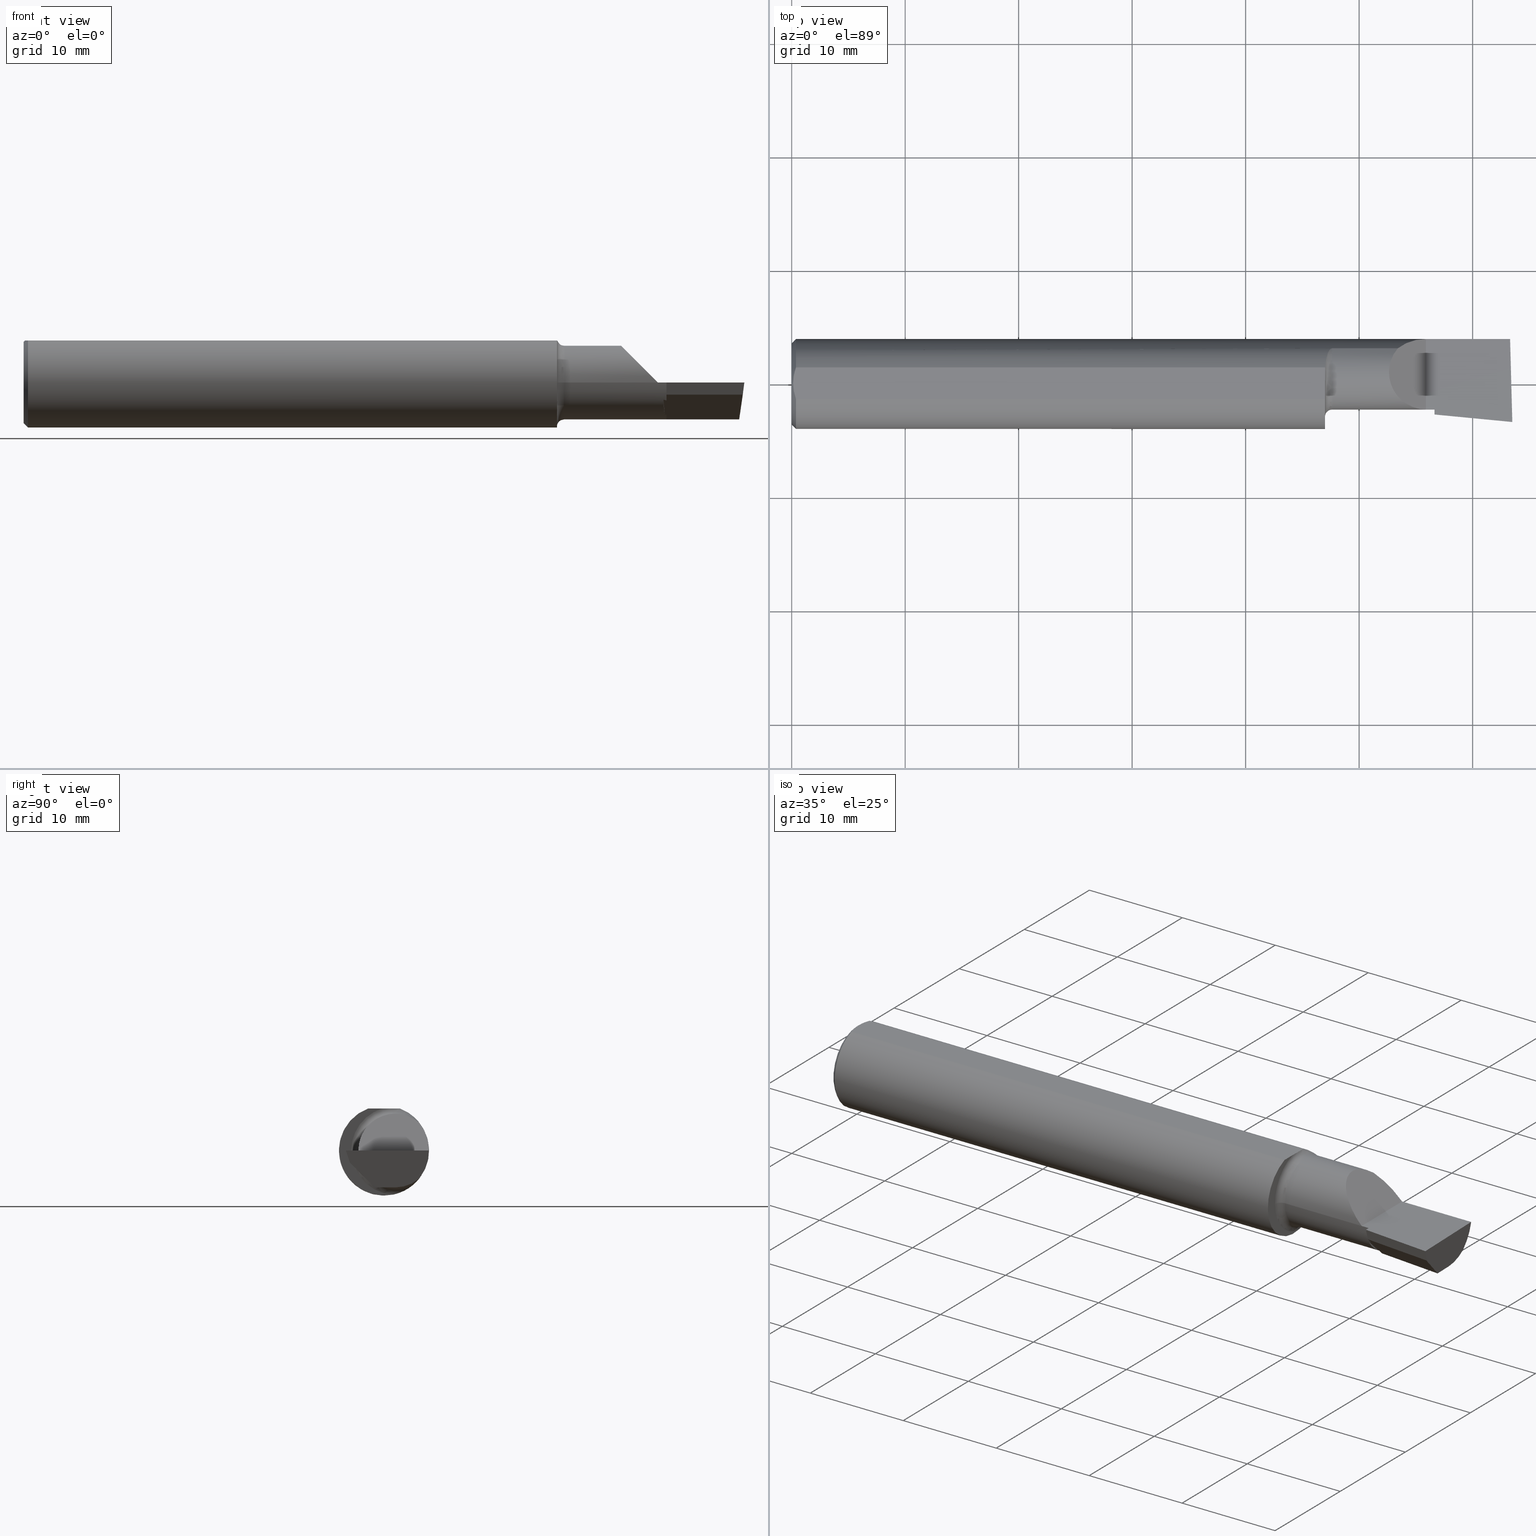
[diagram: canonical four-view strip — front | top / right | iso, engineering-drawing reading convention]
A machine part, canonical four-view strip (front | top / right | iso — engineering-drawing reading convention). The complete STEP part file that produces these views, byte-faithful:
ISO-10303-21;
HEADER;
FILE_DESCRIPTION (( 'STEP AP203' ),
    '1' );
FILE_NAME ('212055-LHB290600.STEP',
    '2024-08-27T17:00:04',
    ( '' ),
    ( '' ),
    'SwSTEP 2.0',
    'SolidWorks 2024',
    '' );
FILE_SCHEMA (( 'CONFIG_CONTROL_DESIGN' ));
ENDSEC;

DATA;
#1 = FACE_OUTER_BOUND ( 'NONE', #699, .T. ) ;
#2 = ORIENTED_EDGE ( 'NONE', *, *, #57, .F. ) ;
#3 =( BOUNDED_CURVE ( )  B_SPLINE_CURVE ( 3, ( #381, #215, #436, #553 ),
 .UNSPECIFIED., .F., .F. ) 
 B_SPLINE_CURVE_WITH_KNOTS ( ( 4, 4 ),
 ( 4.934903206476692006, 5.606733633295030828 ),
 .UNSPECIFIED. ) 
 CURVE ( )  GEOMETRIC_REPRESENTATION_ITEM ( )  RATIONAL_B_SPLINE_CURVE ( ( 1.000000000000000000, 0.9627393467969929119, 0.9627393467969929119, 1.000000000000000000 ) ) 
 REPRESENTATION_ITEM ( '' )  );
#4 = ORIENTED_EDGE ( 'NONE', *, *, #456, .T. ) ;
#5 = AXIS2_PLACEMENT_3D ( 'NONE', #282, #386, #232 ) ;
#6 = DIRECTION ( 'NONE',  ( 0.9953961983671787417, -0.09584575252022418945, -9.831095531899266013E-17 ) ) ;
#7 = CARTESIAN_POINT ( 'NONE',  ( 0.005000000000000177913, 2.057148876208899831E-17, 0.1460999999999999799 ) ) ;
#8 = ADVANCED_FACE ( 'NONE', ( #389 ), #663, .T. ) ;
#9 = ORIENTED_EDGE ( 'NONE', *, *, #161, .F. ) ;
#10 = LINE ( 'NONE', #165, #535 ) ;
#11 = ORIENTED_EDGE ( 'NONE', *, *, #677, .T. ) ;
#12 = LINE ( 'NONE', #172, #336 ) ;
#13 = PRODUCT_RELATED_PRODUCT_CATEGORY ( 'detail', '', ( #250 ) ) ;
#14 = CARTESIAN_POINT ( 'NONE',  ( 2.500000000000000000, 0.2061000000000000332, 0.1460999999999999521 ) ) ;
#15 = ORIENTED_EDGE ( 'NONE', *, *, #617, .T. ) ;
#16 = EDGE_CURVE ( 'NONE', #347, #452, #378, .T. ) ;
#17 = DIRECTION ( 'NONE',  ( 0.000000000000000000, -0.000000000000000000, -1.000000000000000000 ) ) ;
#18 = ORIENTED_EDGE ( 'NONE', *, *, #31, .T. ) ;
#19 = ORIENTED_EDGE ( 'NONE', *, *, #379, .T. ) ;
#20 = CC_DESIGN_APPROVAL ( #428, ( #281 ) ) ;
#21 = DIRECTION ( 'NONE',  ( 0.000000000000000000, 0.000000000000000000, -1.000000000000000000 ) ) ;
#22 = CARTESIAN_POINT ( 'NONE',  ( 0.01499999999999999424, 0.05497272050753903433, 0.1460999999999999521 ) ) ;
#23 = ADVANCED_FACE ( 'NONE', ( #499 ), #616, .F. ) ;
#24 = VERTEX_POINT ( 'NONE', #61 ) ;
#25 = EDGE_CURVE ( 'NONE', #449, #508, #447, .T. ) ;
#26 = CARTESIAN_POINT ( 'NONE',  ( 0.01499999999999999944, -0.05497272050753897882, 0.1461000000000000076 ) ) ;
#27 = DIRECTION ( 'NONE',  ( -1.000000000000000000, 6.829619984160658046E-18, -0.000000000000000000 ) ) ;
#28 = EDGE_LOOP ( 'NONE', ( #416, #249, #313, #667 ) ) ;
#29 = DIRECTION ( 'NONE',  ( -0.06717917588521486738, -0.6976824170844043715, 0.7132504491541850067 ) ) ;
#30 = CARTESIAN_POINT ( 'NONE',  ( 1.850339637342208743, 0.05067448177557441757, -0.1479473295851734538 ) ) ;
#31 = EDGE_CURVE ( 'NONE', #600, #618, #154, .T. ) ;
#32 = DIRECTION ( 'NONE',  ( 0.02677973311239121787, -0.9996413586354002678, 2.361772610768839557E-16 ) ) ;
#33 = DIRECTION ( 'NONE',  ( -0.09584575252022439762, -0.9953961983671787417, 0.000000000000000000 ) ) ;
#34 = CC_DESIGN_PERSON_AND_ORGANIZATION_ASSIGNMENT ( #247, #523, ( #281 ) ) ;
#35 = AXIS2_PLACEMENT_3D ( 'NONE', #695, #156, #414 ) ;
#36 = DIRECTION ( 'NONE',  ( 0.000000000000000000, 0.000000000000000000, 1.000000000000000000 ) ) ;
#37 = EDGE_CURVE ( 'NONE', #91, #74, #217, .T. ) ;
#38 = CARTESIAN_POINT ( 'NONE',  ( 2.200000000000000178, 0.1560999999999997667, 9.797174393178826150E-17 ) ) ;
#39 = EDGE_LOOP ( 'NONE', ( #308, #571, #291, #51 ) ) ;
#40 = DIRECTION ( 'NONE',  ( -1.000000000000000000, 6.829619984160658046E-18, -0.000000000000000000 ) ) ;
#41 = ORIENTED_EDGE ( 'NONE', *, *, #587, .T. ) ;
#42 = APPROVAL ( #384, 'UNSPECIFIED' ) ;
#43 = PERSON_AND_ORGANIZATION_ROLE ( 'design_owner' ) ;
#44 = APPROVAL_PERSON_ORGANIZATION ( #149, #610, #141 ) ;
#45 = DIRECTION ( 'NONE',  ( -0.000000000000000000, 1.000000000000000000, -0.000000000000000000 ) ) ;
#46 = ORIENTED_EDGE ( 'NONE', *, *, #670, .F. ) ;
#47 = PERSON_AND_ORGANIZATION_ROLE ( 'design_supplier' ) ;
#48 = DIRECTION ( 'NONE',  ( 1.000000000000000000, 0.000000000000000000, 0.000000000000000000 ) ) ;
#49 = EDGE_LOOP ( 'NONE', ( #262, #562, #426, #366, #123, #563, #584, #649 ) ) ;
#50 = DIRECTION ( 'NONE',  ( 0.000000000000000000, -1.000000000000000000, 0.000000000000000000 ) ) ;
#51 = ORIENTED_EDGE ( 'NONE', *, *, #16, .T. ) ;
#52 = CONICAL_SURFACE ( 'NONE', #668, 0.1560999999999999888, 0.7853981633974602694 ) ;
#53 = VECTOR ( 'NONE', #548, 39.37007874015748143 ) ;
#54 = DIRECTION ( 'NONE',  ( -6.829619984160657276E-18, -1.000000000000000000, 0.000000000000000000 ) ) ;
#55 = ORIENTED_EDGE ( 'NONE', *, *, #470, .T. ) ;
#56 = DIRECTION ( 'NONE',  ( -1.000000000000000000, -0.000000000000000000, -0.000000000000000000 ) ) ;
#57 = EDGE_CURVE ( 'NONE', #644, #24, #684, .T. ) ;
#58 = VERTEX_POINT ( 'NONE', #285 ) ;
#59 = AXIS2_PLACEMENT_3D ( 'NONE', #307, #682, #131 ) ;
#60 = LINE ( 'NONE', #279, #229 ) ;
#61 = CARTESIAN_POINT ( 'NONE',  ( 2.480278310775617889, 0.03899999999999996525, -0.1279000000000000137 ) ) ;
#62 = AXIS2_PLACEMENT_3D ( 'NONE', #288, #462, #237 ) ;
#63 = CARTESIAN_POINT ( 'NONE',  ( 2.500000000000000000, -0.1319000000000001283, 8.537024980200822558E-17 ) ) ;
#64 = CARTESIAN_POINT ( 'NONE',  ( 1.871394201221187714, 0.1214391589398817889, 0.09808983170724469569 ) ) ;
#65 = SECURITY_CLASSIFICATION ( '', '', #145 ) ;
#66 = ORIENTED_EDGE ( 'NONE', *, *, #310, .T. ) ;
#67 = DATE_AND_TIME ( #697, #127 ) ;
#68 = CARTESIAN_POINT ( 'NONE',  ( 2.200000000000000178, 0.1560999999999997667, 9.797174393178826150E-17 ) ) ;
#69 = CARTESIAN_POINT ( 'NONE',  ( 2.479943065675275005, 0.09875439382140573097, -0.1172113754642092193 ) ) ;
#70 = ORIENTED_EDGE ( 'NONE', *, *, #471, .T. ) ;
#71 = CARTESIAN_POINT ( 'NONE',  ( 0.000000000000000000, 0.000000000000000000, 0.000000000000000000 ) ) ;
#72 = ADVANCED_FACE ( 'NONE', ( #503 ), #395, .F. ) ;
#73 = CARTESIAN_POINT ( 'NONE',  ( 0.009371209226504017067, 0.03711161584255317364, 0.1460999999999999799 ) ) ;
#74 = VERTEX_POINT ( 'NONE', #22 ) ;
#75 = CARTESIAN_POINT ( 'NONE',  ( 1.851002510363910059, 0.03462329751451400511, 0.1460999999999999799 ) ) ;
#76 = CARTESIAN_POINT ( 'NONE',  ( 1.850000000000000311, 0.03217692307692287396, -0.1527476861405820951 ) ) ;
#77 = ORIENTED_EDGE ( 'NONE', *, *, #191, .T. ) ;
#78 = CARTESIAN_POINT ( 'NONE',  ( 1.849999999999999867, 0.004133650856200373619, 0.1460999999999999521 ) ) ;
#79 = EDGE_CURVE ( 'NONE', #445, #560, #438, .T. ) ;
#80 = CARTESIAN_POINT ( 'NONE',  ( 1.857643545987175182, 0.09968740490940185273, -0.1204690658458922592 ) ) ;
#81 = LINE ( 'NONE', #299, #274 ) ;
#82 = APPLICATION_CONTEXT ( 'configuration controlled 3d designs of mechanical parts and assemblies' ) ;
#83 = LINE ( 'NONE', #181, #153 ) ;
#84 = CARTESIAN_POINT ( 'NONE',  ( 0.000000000000000000, 0.05497272050753903433, 0.1460999999999999521 ) ) ;
#85 = EDGE_CURVE ( 'NONE', #525, #640, #383, .T. ) ;
#86 = FACE_OUTER_BOUND ( 'NONE', #39, .T. ) ;
#87 = ORIENTED_EDGE ( 'NONE', *, *, #231, .T. ) ;
#88 = DIRECTION ( 'NONE',  ( -1.000000000000000000, 6.829619984160658046E-18, -0.000000000000000000 ) ) ;
#89 = ORIENTED_EDGE ( 'NONE', *, *, #110, .F. ) ;
#90 = LINE ( 'NONE', #315, #520 ) ;
#91 = VERTEX_POINT ( 'NONE', #109 ) ;
#92 = COORDINATED_UNIVERSAL_TIME_OFFSET ( 8, 0, .BEHIND. ) ;
#93 = CC_DESIGN_APPROVAL ( #42, ( #65 ) ) ;
#94 = DIRECTION ( 'NONE',  ( 0.000000000000000000, -0.3019700370129924094, 0.9533174165755977647 ) ) ;
#95 = ORIENTED_EDGE ( 'NONE', *, *, #677, .F. ) ;
#96 = DIRECTION ( 'NONE',  ( 0.000000000000000000, 0.000000000000000000, 1.000000000000000000 ) ) ;
#97 = CC_DESIGN_PERSON_AND_ORGANIZATION_ASSIGNMENT ( #264, #43, ( #250 ) ) ;
#98 = DIRECTION ( 'NONE',  ( 0.000000000000000000, 0.000000000000000000, 1.000000000000000000 ) ) ;
#99 = VERTEX_POINT ( 'NONE', #330 ) ;
#100 = VERTEX_POINT ( 'NONE', #554 ) ;
#101 = LINE ( 'NONE', #418, #305 ) ;
#102 = ORIENTED_EDGE ( 'NONE', *, *, #57, .T. ) ;
#103 =( GEOMETRIC_REPRESENTATION_CONTEXT ( 3 ) GLOBAL_UNCERTAINTY_ASSIGNED_CONTEXT ( ( #526 ) ) GLOBAL_UNIT_ASSIGNED_CONTEXT ( ( #429, #687, #591 ) ) REPRESENTATION_CONTEXT ( 'NONE', 'WORKASPACE' ) );
#104 = EDGE_CURVE ( 'NONE', #489, #449, #407, .T. ) ;
#105 = DIRECTION ( 'NONE',  ( 0.000000000000000000, -1.000000000000000000, 0.000000000000000000 ) ) ;
#106 = CIRCLE ( 'NONE', #634, 0.1410999999999996146 ) ;
#107 = CARTESIAN_POINT ( 'NONE',  ( 3.121792066109142165E-32, 0.1560999999999999333, 3.155924005931204823E-16 ) ) ;
#108 = CARTESIAN_POINT ( 'NONE',  ( 0.000000000000000000, 0.000000000000000000, -0.1410999999999996146 ) ) ;
#109 = CARTESIAN_POINT ( 'NONE',  ( 0.005000000000000177913, 2.057148876208899831E-17, 0.1460999999999999799 ) ) ;
#110 = EDGE_CURVE ( 'NONE', #644, #376, #81, .T. ) ;
#111 = AXIS2_PLACEMENT_3D ( 'NONE', #355, #27, #301 ) ;
#112 = EDGE_LOOP ( 'NONE', ( #157, #87, #119 ) ) ;
#113 = DIRECTION ( 'NONE',  ( -9.891848030060559526E-17, 0.000000000000000000, -1.000000000000000000 ) ) ;
#114 = CARTESIAN_POINT ( 'NONE',  ( 0.005929349363809115203, 0.01879672308419498561, 0.1461000000000000076 ) ) ;
#115 = AXIS2_PLACEMENT_3D ( 'NONE', #425, #430, #98 ) ;
#116 = ORIENTED_EDGE ( 'NONE', *, *, #404, .T. ) ;
#117 = DIRECTION ( 'NONE',  ( -1.000000000000000000, 6.829619984160658046E-18, -0.000000000000000000 ) ) ;
#118 = CARTESIAN_POINT ( 'NONE',  ( 1.859698108077551426, 0.1054404049151040079, 0.1153284228895402330 ) ) ;
#119 = ORIENTED_EDGE ( 'NONE', *, *, #339, .T. ) ;
#120 = LINE ( 'NONE', #453, #227 ) ;
#121 = CIRCLE ( 'NONE', #111, 0.1529000000000000359 ) ;
#122 = CARTESIAN_POINT ( 'NONE',  ( 2.164368501139629419, 0.1560999999999999888, 0.03563149886037008524 ) ) ;
#123 = ORIENTED_EDGE ( 'NONE', *, *, #379, .F. ) ;
#124 = ADVANCED_FACE ( 'NONE', ( #514 ), #178, .F. ) ;
#125 = CARTESIAN_POINT ( 'NONE',  ( 1.850497536416571442, 0.01428560316177526941, 0.1461000000000000076 ) ) ;
#126 = CARTESIAN_POINT ( 'NONE',  ( 1.861718925422503945, 0.1096997042182705773, -0.1111484413982588015 ) ) ;
#127 = LOCAL_TIME ( 10, 0, 4.000000000000000000, #478 ) ;
#128 = CC_DESIGN_DATE_AND_TIME_ASSIGNMENT ( #641, #256, ( #281 ) ) ;
#129 = ORIENTED_EDGE ( 'NONE', *, *, #310, .F. ) ;
#130 = CARTESIAN_POINT ( 'NONE',  ( 2.481689713451043833, 0.1221769230769230025, -0.09715971113303926987 ) ) ;
#131 = DIRECTION ( 'NONE',  ( 0.000000000000000000, -1.000000000000000000, 2.362393828558074595E-16 ) ) ;
#132 = B_SPLINE_CURVE_WITH_KNOTS ( 'NONE', 3,
 ( #581, #411, #511, #624, #246, #139, #135, #345, #126, #80, #468, #567, #521, #30, #239, #76 ),
 .UNSPECIFIED., .F., .F.,
 ( 4, 2, 2, 2, 2, 2, 2, 4 ),
 ( 1.968192473106879856E-07, 9.217006773806666828E-05, 0.0001841433162288226436, 0.0003680898132103224240, 0.0007359828071733212802, 0.001471768795099325606, 0.002207554783025329932, 0.002943340770951334041 ),
 .UNSPECIFIED. ) ;
#133 = MANIFOLD_SOLID_BREP ( 'Extrude7', #148 ) ;
#134 = CARTESIAN_POINT ( 'NONE',  ( 1.850713348720346207, 0.05497272050753925637, 0.1460999999999999521 ) ) ;
#135 = CARTESIAN_POINT ( 'NONE',  ( 1.866392177358948024, 0.1172252637552309573, -0.1031022108064128945 ) ) ;
#136 = ADVANCED_FACE ( 'NONE', ( #460 ), #406, .F. ) ;
#137 = DIRECTION ( 'NONE',  ( 0.000000000000000000, 0.000000000000000000, 1.000000000000000000 ) ) ;
#138 = VECTOR ( 'NONE', #29, 39.37007874015748143 ) ;
#139 = CARTESIAN_POINT ( 'NONE',  ( 1.867557852537987007, 0.1186103045499230513, -0.1015006042428822641 ) ) ;
#140 = VECTOR ( 'NONE', #56, 39.37007874015748143 ) ;
#141 = APPROVAL_ROLE ( '' ) ;
#142 = DIRECTION ( 'NONE',  ( -1.000000000000000000, 6.829619984160658046E-18, -0.000000000000000000 ) ) ;
#143 = EDGE_CURVE ( 'NONE', #376, #174, #132, .T. ) ;
#144 = ORIENTED_EDGE ( 'NONE', *, *, #466, .T. ) ;
#145 = SECURITY_CLASSIFICATION_LEVEL ( 'unclassified' ) ;
#146 = FACE_OUTER_BOUND ( 'NONE', #392, .T. ) ;
#147 = ORIENTED_EDGE ( 'NONE', *, *, #85, .F. ) ;
#148 = CLOSED_SHELL ( 'NONE', ( #254, #661, #367, #124, #72, #598, #8, #23, #388, #318, #572, #278, #287, #214, #150, #360, #208, #607, #136 ) ) ;
#149 = PERSON_AND_ORGANIZATION ( #484, #577 ) ;
#150 = ADVANCED_FACE ( 'NONE', ( #86 ), #620, .F. ) ;
#151 = CARTESIAN_POINT ( 'NONE',  ( 2.217581325552286042, -0.09140237746813982544, -0.04199999999999994016 ) ) ;
#152 = VERTEX_POINT ( 'NONE', #524 ) ;
#153 = VECTOR ( 'NONE', #408, 39.37007874015748143 ) ;
#154 = B_SPLINE_CURVE_WITH_KNOTS ( 'NONE', 3,
 ( #170, #223, #608, #327, #118, #277, #557, #666, #173, #64, #226, #671 ),
 .UNSPECIFIED., .F., .F.,
 ( 4, 2, 2, 2, 2, 4 ),
 ( 5.609278044437242005E-07, 0.001139286486424871073, 0.001708649265735085430, 0.001993330655390192392, 0.002135671350217746307, 0.002278012045045300655 ),
 .UNSPECIFIED. ) ;
#155 = DIRECTION ( 'NONE',  ( 0.000000000000000000, -1.000000000000000000, 0.000000000000000000 ) ) ;
#156 = DIRECTION ( 'NONE',  ( -1.000000000000000000, 6.829619984160658046E-18, 0.000000000000000000 ) ) ;
#157 = ORIENTED_EDGE ( 'NONE', *, *, #104, .F. ) ;
#158 = CALENDAR_DATE ( 2024, 27, 8 ) ;
#159 = CARTESIAN_POINT ( 'NONE',  ( 2.229999999999999982, 0.03899999999999997913, 0.000000000000000000 ) ) ;
#160 = ORIENTED_EDGE ( 'NONE', *, *, #435, .T. ) ;
#161 = EDGE_CURVE ( 'NONE', #174, #693, #121, .T. ) ;
#162 = CARTESIAN_POINT ( 'NONE',  ( 2.229999999999999982, 0.03899999999999996525, -0.1278999999999999859 ) ) ;
#163 = ORIENTED_EDGE ( 'NONE', *, *, #191, .F. ) ;
#164 =( BOUNDED_CURVE ( )  B_SPLINE_CURVE ( 3, ( #207, #599, #545, #498 ),
 .UNSPECIFIED., .F., .T. ) 
 B_SPLINE_CURVE_WITH_KNOTS ( ( 4, 4 ),
 ( 2.847793815029258546, 2.868396356574266282 ),
 .UNSPECIFIED. ) 
 CURVE ( )  GEOMETRIC_REPRESENTATION_ITEM ( )  RATIONAL_B_SPLINE_CURVE ( ( 1.000000000000000000, 0.9999646282529517372, 0.9999646282529517372, 1.000000000000000000 ) ) 
 REPRESENTATION_ITEM ( '' )  );
#165 = CARTESIAN_POINT ( 'NONE',  ( 2.511267271176985005, -0.1329849148174155893, 6.718165849964441477E-17 ) ) ;
#166 = CIRCLE ( 'NONE', #547, 0.1278999999999999859 ) ;
#167 = EDGE_CURVE ( 'NONE', #74, #640, #515, .T. ) ;
#168 = DIRECTION ( 'NONE',  ( 0.1199690778467074892, -0.3102690083707261848, 0.9430485474275737134 ) ) ;
#169 = CARTESIAN_POINT ( 'NONE',  ( 2.229999999999999982, -0.07288638121117572977, -0.06196650465749591746 ) ) ;
#170 = CARTESIAN_POINT ( 'NONE',  ( 1.850713348720346207, 0.05497272050753925637, 0.1460999999999999521 ) ) ;
#171 = SHAPE_DEFINITION_REPRESENTATION ( #417, #261 ) ;
#172 = CARTESIAN_POINT ( 'NONE',  ( 2.480292454266014079, 0.03847204783946026746, -0.1279000000000000137 ) ) ;
#173 = CARTESIAN_POINT ( 'NONE',  ( 1.868763041475363096, 0.1196999967355481670, 0.1002047663032614166 ) ) ;
#174 = VERTEX_POINT ( 'NONE', #304 ) ;
#175 = DIRECTION ( 'NONE',  ( -1.000000000000000000, 0.000000000000000000, 0.000000000000000000 ) ) ;
#176 = EDGE_LOOP ( 'NONE', ( #343, #193, #424, #696, #399 ) ) ;
#177 = PLANE ( 'NONE',  #611 ) ;
#178 = PLANE ( 'NONE',  #365 ) ;
#179 = EDGE_CURVE ( 'NONE', #286, #347, #576, .T. ) ;
#180 = EDGE_LOOP ( 'NONE', ( #504, #70, #451, #636, #371 ) ) ;
#181 = CARTESIAN_POINT ( 'NONE',  ( 2.229999999999999982, -0.1250987282888250673, -0.009079441937751876746 ) ) ;
#182 = LINE ( 'NONE', #467, #458 ) ;
#183 = ORIENTED_EDGE ( 'NONE', *, *, #653, .T. ) ;
#184 = CARTESIAN_POINT ( 'NONE',  ( 1.850713348720346207, 0.05497272050753925637, 0.1460999999999999521 ) ) ;
#185 = CARTESIAN_POINT ( 'NONE',  ( 0.01499999999999999424, 0.000000000000000000, 0.000000000000000000 ) ) ;
#186 = CC_DESIGN_SECURITY_CLASSIFICATION ( #65, ( #350 ) ) ;
#187 = CARTESIAN_POINT ( 'NONE',  ( 0.009356849677356088302, -0.03706298561014170767, 0.1461000000000000354 ) ) ;
#188 = CYLINDRICAL_SURFACE ( 'NONE', #427, 0.1279000000000000137 ) ;
#189 = DIRECTION ( 'NONE',  ( 1.000000000000000000, 0.000000000000000000, 0.000000000000000000 ) ) ;
#190 = DIRECTION ( 'NONE',  ( -0.9927123040216839778, -0.02659410830638095011, 0.1175373763844856645 ) ) ;
#191 = EDGE_CURVE ( 'NONE', #74, #600, #454, .T. ) ;
#192 = LOCAL_TIME ( 10, 0, 4.000000000000000000, #92 ) ;
#193 = ORIENTED_EDGE ( 'NONE', *, *, #470, .F. ) ;
#194 = PERSON_AND_ORGANIZATION ( #484, #577 ) ;
#195 = DIRECTION ( 'NONE',  ( 1.000000000000000000, -6.829619984160658046E-18, 0.000000000000000000 ) ) ;
#196 = ORIENTED_EDGE ( 'NONE', *, *, #37, .T. ) ;
#197 = EDGE_CURVE ( 'NONE', #286, #445, #182, .T. ) ;
#198 = COORDINATED_UNIVERSAL_TIME_OFFSET ( 8, 0, .BEHIND. ) ;
#199 = FACE_OUTER_BOUND ( 'NONE', #236, .T. ) ;
#200 = CC_DESIGN_PERSON_AND_ORGANIZATION_ASSIGNMENT ( #638, #47, ( #350 ) ) ;
#201 = ORIENTED_EDGE ( 'NONE', *, *, #542, .T. ) ;
#202 = CARTESIAN_POINT ( 'NONE',  ( 0.000000000000000000, 0.000000000000000000, 0.000000000000000000 ) ) ;
#203 = LINE ( 'NONE', #270, #206 ) ;
#204 = EDGE_LOOP ( 'NONE', ( #325, #512, #469, #275, #295, #11, #444, #539, #77, #18, #541, #481 ) ) ;
#205 = APPLICATION_PROTOCOL_DEFINITION ( 'international standard', 'config_control_design', 1994, #82 ) ;
#206 = VECTOR ( 'NONE', #592, 39.37007874015748143 ) ;
#207 = CARTESIAN_POINT ( 'NONE',  ( 2.219243579197731631, -0.07413921331227917022, -0.05964837307989716980 ) ) ;
#208 = ADVANCED_FACE ( 'NONE', ( #686 ), #353, .F. ) ;
#209 = ORIENTED_EDGE ( 'NONE', *, *, #689, .T. ) ;
#210 = ORIENTED_EDGE ( 'NONE', *, *, #647, .T. ) ;
#211 = LINE ( 'NONE', #326, #53 ) ;
#212 = ORIENTED_EDGE ( 'NONE', *, *, #263, .F. ) ;
#213 = VECTOR ( 'NONE', #506, 39.37007874015748143 ) ;
#214 = ADVANCED_FACE ( 'NONE', ( #243 ), #188, .T. ) ;
#215 = CARTESIAN_POINT ( 'NONE',  ( 2.488065891762460069, 0.1561000000000000443, -0.03563149886036989789 ) ) ;
#216 = CARTESIAN_POINT ( 'NONE',  ( 0.01187749995209277584, 0.04610609988228757394, 0.1460999999999999799 ) ) ;
#217 = B_SPLINE_CURVE_WITH_KNOTS ( 'NONE', 3,
 ( #7, #613, #114, #73, #216, #549 ),
 .UNSPECIFIED., .F., .F.,
 ( 4, 2, 4 ),
 ( 0.002884734412378666280, 0.003593604306281239329, 0.004302474200183812811 ),
 .UNSPECIFIED. ) ;
#218 = CARTESIAN_POINT ( 'NONE',  ( 2.229999999999999982, 0.03899999999999997913, 0.000000000000000000 ) ) ;
#219 = LOCAL_TIME ( 10, 0, 4.000000000000000000, #442 ) ;
#220 = CARTESIAN_POINT ( 'NONE',  ( 2.480278310775617889, 0.03899999999999996525, -0.1279000000000000137 ) ) ;
#221 = CALENDAR_DATE ( 2024, 27, 8 ) ;
#222 = DIRECTION ( 'NONE',  ( 0.000000000000000000, 0.000000000000000000, 1.000000000000000000 ) ) ;
#223 = CARTESIAN_POINT ( 'NONE',  ( 1.851630938536527937, 0.06913608029031592661, 0.1407707842656651387 ) ) ;
#224 = ORIENTED_EDGE ( 'NONE', *, *, #466, .F. ) ;
#225 = CARTESIAN_POINT ( 'NONE',  ( 2.229999999999999982, -0.08890000000000000679, 0.000000000000000000 ) ) ;
#226 = CARTESIAN_POINT ( 'NONE',  ( 1.873073469876037622, 0.1221769230783499999, 0.09715971113124509395 ) ) ;
#227 = VECTOR ( 'NONE', #566, 39.37007874015748143 ) ;
#228 = ORIENTED_EDGE ( 'NONE', *, *, #602, .T. ) ;
#229 = VECTOR ( 'NONE', #555, 39.37007874015748143 ) ;
#230 = DIRECTION ( 'NONE',  ( -1.000000000000000000, -0.000000000000000000, -0.000000000000000000 ) ) ;
#231 = EDGE_CURVE ( 'NONE', #489, #363, #297, .T. ) ;
#232 = DIRECTION ( 'NONE',  ( 0.000000000000000000, 0.000000000000000000, 1.000000000000000000 ) ) ;
#233 = EDGE_LOOP ( 'NONE', ( #543, #183, #546 ) ) ;
#234 = CARTESIAN_POINT ( 'NONE',  ( 2.229999999999999982, -0.09259815981058530654, -0.04199999999999994016 ) ) ;
#235 = DIRECTION ( 'NONE',  ( -0.9953961983671787417, 0.09584575252022421721, -1.833768617864262852E-17 ) ) ;
#236 = EDGE_LOOP ( 'NONE', ( #672, #328, #323, #420 ) ) ;
#237 = DIRECTION ( 'NONE',  ( -6.829619984160658046E-18, -1.000000000000000000, 0.000000000000000000 ) ) ;
#238 = EDGE_CURVE ( 'NONE', #618, #489, #101, .T. ) ;
#239 = CARTESIAN_POINT ( 'NONE',  ( 1.850000000000000755, 0.04153761541478970254, -0.1507758181214157445 ) ) ;
#240 = VECTOR ( 'NONE', #601, 39.37007874015748854 ) ;
#241 = DIRECTION ( 'NONE',  ( -6.829619984160658046E-18, -1.000000000000000000, 0.000000000000000000 ) ) ;
#242 = VECTOR ( 'NONE', #298, 39.37007874015748143 ) ;
#243 = FACE_OUTER_BOUND ( 'NONE', #28, .T. ) ;
#244 = AXIS2_PLACEMENT_3D ( 'NONE', #574, #517, #33 ) ;
#245 = CARTESIAN_POINT ( 'NONE',  ( 0.01499999999999999424, 1.911673653469018068E-17, 0.1560999999999999888 ) ) ;
#246 = CARTESIAN_POINT ( 'NONE',  ( 1.869807963827558206, 0.1204260765459406329, -0.09932603807424252029 ) ) ;
#247 = PERSON_AND_ORGANIZATION ( #484, #577 ) ;
#248 = DIRECTION ( 'NONE',  ( -1.000000000000000000, 6.829619984160658046E-18, -0.000000000000000000 ) ) ;
#249 = ORIENTED_EDGE ( 'NONE', *, *, #231, .F. ) ;
#250 = PRODUCT ( '212055-LHB290600', '212055-LHB290600', '', ( #694 ) ) ;
#251 = DESIGN_CONTEXT ( 'detailed design', #82, 'design' ) ;
#252 = DATE_AND_TIME ( #582, #280 ) ;
#253 = CARTESIAN_POINT ( 'NONE',  ( 2.229999999999999982, -0.007794043580176780381, -0.1278999999999999859 ) ) ;
#254 = ADVANCED_FACE ( 'NONE', ( #364 ), #324, .T. ) ;
#255 = EDGE_LOOP ( 'NONE', ( #55, #536 ) ) ;
#256 = DATE_TIME_ROLE ( 'creation_date' ) ;
#257 = PLANE ( 'NONE',  #531 ) ;
#258 = ORIENTED_EDGE ( 'NONE', *, *, #197, .F. ) ;
#259 = APPROVAL_STATUS ( 'not_yet_approved' ) ;
#260 = DIRECTION ( 'NONE',  ( 0.000000000000000000, 0.000000000000000000, -1.000000000000000000 ) ) ;
#261 = ADVANCED_BREP_SHAPE_REPRESENTATION ( '212055-LHB290600', ( #133, #482 ), #103 ) ;
#262 = ORIENTED_EDGE ( 'NONE', *, *, #179, .F. ) ;
#263 = EDGE_CURVE ( 'NONE', #679, #525, #463, .T. ) ;
#264 = PERSON_AND_ORGANIZATION ( #484, #577 ) ;
#265 = CARTESIAN_POINT ( 'NONE',  ( 1.875000000000000000, 0.1221769230769220033, -0.09715971113304010254 ) ) ;
#266 = APPROVAL_PERSON_ORGANIZATION ( #650, #428, #585 ) ;
#267 = ORIENTED_EDGE ( 'NONE', *, *, #296, .T. ) ;
#268 = ORIENTED_EDGE ( 'NONE', *, *, #37, .F. ) ;
#269 = PERSON_AND_ORGANIZATION ( #484, #577 ) ;
#270 = CARTESIAN_POINT ( 'NONE',  ( 2.229999999999999982, -0.2500000000000000555, 9.500418952277011559E-17 ) ) ;
#271 = ORIENTED_EDGE ( 'NONE', *, *, #25, .F. ) ;
#272 = CARTESIAN_POINT ( 'NONE',  ( 2.500000000000000000, 0.03899999999999996525, -0.1279000000000000137 ) ) ;
#273 = DIRECTION ( 'NONE',  ( 0.000000000000000000, 0.000000000000000000, -1.000000000000000000 ) ) ;
#274 = VECTOR ( 'NONE', #248, 39.37007874015748143 ) ;
#275 = ORIENTED_EDGE ( 'NONE', *, *, #143, .T. ) ;
#276 = LINE ( 'NONE', #665, #240 ) ;
#277 = CARTESIAN_POINT ( 'NONE',  ( 1.863476732597052488, 0.1130158469709901942, 0.1077376761497236685 ) ) ;
#278 = ADVANCED_FACE ( 'NONE', ( #199 ), #698, .F. ) ;
#279 = CARTESIAN_POINT ( 'NONE',  ( 1.850000000000000311, 0.2061000000000000332, 0.1460999999999999521 ) ) ;
#280 = LOCAL_TIME ( 10, 0, 4.000000000000000000, #361 ) ;
#281 = PRODUCT_DEFINITION ( 'UNKNOWN', '', #350, #251 ) ;
#282 = CARTESIAN_POINT ( 'NONE',  ( 0.000000000000000000, 0.000000000000000000, 0.000000000000000000 ) ) ;
#283 = ORIENTED_EDGE ( 'NONE', *, *, #617, .F. ) ;
#284 = DIRECTION ( 'NONE',  ( 0.000000000000000000, -1.000000000000000000, 0.000000000000000000 ) ) ;
#285 = CARTESIAN_POINT ( 'NONE',  ( 1.875000000000000000, -0.08890000000000003455, 0.000000000000000000 ) ) ;
#286 = VERTEX_POINT ( 'NONE', #635 ) ;
#287 = ADVANCED_FACE ( 'NONE', ( #362 ), #643, .F. ) ;
#288 = CARTESIAN_POINT ( 'NONE',  ( 1.875000000000000000, 0.03899999999999997913, 0.000000000000000000 ) ) ;
#289 = DIRECTION ( 'NONE',  ( 1.000000000000000000, 0.000000000000000000, 0.000000000000000000 ) ) ;
#290 = CIRCLE ( 'NONE', #448, 0.1560999999999999888 ) ;
#291 = ORIENTED_EDGE ( 'NONE', *, *, #179, .T. ) ;
#292 = CARTESIAN_POINT ( 'NONE',  ( 2.217581325552286042, -0.09140237746813982544, -0.04199999999999994016 ) ) ;
#293 = AXIS2_PLACEMENT_3D ( 'NONE', #329, #657, #284 ) ;
#294 = CARTESIAN_POINT ( 'NONE',  ( 2.130728481662468532, 0.1443546689866652133, 0.06927151833753075749 ) ) ;
#295 = ORIENTED_EDGE ( 'NONE', *, *, #412, .T. ) ;
#296 = EDGE_CURVE ( 'NONE', #363, #58, #90, .T. ) ;
#297 =( BOUNDED_CURVE ( )  B_SPLINE_CURVE ( 3, ( #479, #688, #372, #692 ),
 .UNSPECIFIED., .F., .F. ) 
 B_SPLINE_CURVE_WITH_KNOTS ( ( 4, 4 ),
 ( 5.575169463880066623, 7.853981633974482790 ),
 .UNSPECIFIED. ) 
 CURVE ( )  GEOMETRIC_REPRESENTATION_ITEM ( )  RATIONAL_B_SPLINE_CURVE ( ( 1.000000000000000000, 0.6120893875309951770, 0.6120893875309951770, 1.000000000000000000 ) ) 
 REPRESENTATION_ITEM ( '' )  );
#298 = DIRECTION ( 'NONE',  ( 0.9953961983671787417, -0.09584575252022421721, -0.000000000000000000 ) ) ;
#299 = CARTESIAN_POINT ( 'NONE',  ( 2.052500000000000213, 0.1221769230769230025, -0.09715971113303926987 ) ) ;
#300 = CARTESIAN_POINT ( 'NONE',  ( 1.875000000000000000, 0.03899999999999997913, 0.000000000000000000 ) ) ;
#301 = DIRECTION ( 'NONE',  ( 0.000000000000000000, -1.000000000000000000, 0.000000000000000000 ) ) ;
#302 = VECTOR ( 'NONE', #465, 39.37007874015748143 ) ;
#303 = CARTESIAN_POINT ( 'NONE',  ( 2.222050397172008918, -0.04498929411773995579, -0.09964739099361781538 ) ) ;
#304 = CARTESIAN_POINT ( 'NONE',  ( 1.850000000000000311, 0.03217692307692287396, -0.1527476861405820951 ) ) ;
#305 = VECTOR ( 'NONE', #195, 39.37007874015748143 ) ;
#306 = APPROVAL_DATE_TIME ( #314, #428 ) ;
#307 = CARTESIAN_POINT ( 'NONE',  ( 2.500000000000000000, 0.03899999999999996525, -0.1279000000000000137 ) ) ;
#308 = ORIENTED_EDGE ( 'NONE', *, *, #518, .F. ) ;
#309 = APPLICATION_PROTOCOL_DEFINITION ( 'international standard', 'config_control_design', 1994, #522 ) ;
#310 = EDGE_CURVE ( 'NONE', #477, #432, #203, .T. ) ;
#311 = LINE ( 'NONE', #529, #437 ) ;
#312 = VECTOR ( 'NONE', #678, 39.37007874015748143 ) ;
#313 = ORIENTED_EDGE ( 'NONE', *, *, #238, .F. ) ;
#314 = DATE_AND_TIME ( #158, #507 ) ;
#315 = CARTESIAN_POINT ( 'NONE',  ( -8.735083959741482054E-19, -0.08890000000000000679, 0.000000000000000000 ) ) ;
#316 = VERTEX_POINT ( 'NONE', #583 ) ;
#317 = CC_DESIGN_APPROVAL ( #610, ( #350 ) ) ;
#318 = ADVANCED_FACE ( 'NONE', ( #540 ), #476, .F. ) ;
#319 = PERSON_AND_ORGANIZATION ( #484, #577 ) ;
#320 = CARTESIAN_POINT ( 'NONE',  ( 2.200000000000000178, -0.08890000000000007618, 9.797174393178826150E-17 ) ) ;
#321 = EDGE_LOOP ( 'NONE', ( #201, #228, #163, #268, #46, #95 ) ) ;
#322 = DIRECTION ( 'NONE',  ( -6.829619984160657276E-18, -1.000000000000000000, 0.000000000000000000 ) ) ;
#323 = ORIENTED_EDGE ( 'NONE', *, *, #542, .F. ) ;
#324 = CYLINDRICAL_SURFACE ( 'NONE', #394, 0.1279000000000000137 ) ;
#325 = ORIENTED_EDGE ( 'NONE', *, *, #25, .T. ) ;
#326 = CARTESIAN_POINT ( 'NONE',  ( -8.735083959741170053E-19, -0.08889999999999999292, 3.155924005931204823E-16 ) ) ;
#327 = CARTESIAN_POINT ( 'NONE',  ( 1.857875668882802200, 0.09985555054163942901, 0.1202116869044330127 ) ) ;
#328 = ORIENTED_EDGE ( 'NONE', *, *, #488, .T. ) ;
#329 = CARTESIAN_POINT ( 'NONE',  ( 1.875000000000000000, 0.03899999999999997913, 0.000000000000000000 ) ) ;
#330 = CARTESIAN_POINT ( 'NONE',  ( 1.850000000000000311, -0.006091019061449604553, 0.1460999999999999799 ) ) ;
#331 = VECTOR ( 'NONE', #497, 39.37007874015748143 ) ;
#332 = CC_DESIGN_PERSON_AND_ORGANIZATION_ASSIGNMENT ( #194, #368, ( #350 ) ) ;
#333 = LINE ( 'NONE', #272, #140 ) ;
#334 = DIRECTION ( 'NONE',  ( 0.000000000000000000, -1.656870447394628111E-16, -1.000000000000000000 ) ) ;
#335 = AXIS2_PLACEMENT_3D ( 'NONE', #159, #646, #50 ) ;
#336 = VECTOR ( 'NONE', #32, 39.37007874015748143 ) ;
#337 = LINE ( 'NONE', #558, #660 ) ;
#338 = DIRECTION ( 'NONE',  ( 1.000000000000000000, 0.000000000000000000, 0.000000000000000000 ) ) ;
#339 = EDGE_CURVE ( 'NONE', #363, #449, #311, .T. ) ;
#340 = ORIENTED_EDGE ( 'NONE', *, *, #637, .T. ) ;
#341 = DIRECTION ( 'NONE',  ( 0.000000000000000000, -1.000000000000000000, 0.000000000000000000 ) ) ;
#342 = CARTESIAN_POINT ( 'NONE',  ( 2.479452310584073782, 0.06983316589608461189, -0.1278999999999999582 ) ) ;
#343 = ORIENTED_EDGE ( 'NONE', *, *, #647, .F. ) ;
#344 = DIRECTION ( 'NONE',  ( 0.06836202603457076921, 0.7099667855717585185, 0.7009092642998475675 ) ) ;
#345 = CARTESIAN_POINT ( 'NONE',  ( 1.863285512035948166, 0.1129012003027984878, -0.1078842078934690862 ) ) ;
#346 = EDGE_CURVE ( 'NONE', #452, #152, #496, .T. ) ;
#347 = VERTEX_POINT ( 'NONE', #253 ) ;
#348 = DIRECTION ( 'NONE',  ( 0.000000000000000000, -0.7025528302622682242, 0.7116315905652843554 ) ) ;
#349 = CARTESIAN_POINT ( 'NONE',  ( 2.493055307542864529, -0.03312338876679007948, -0.1278999999999999859 ) ) ;
#350 = PRODUCT_DEFINITION_FORMATION_WITH_SPECIFIED_SOURCE ( 'ANY', '', #250, .NOT_KNOWN. ) ;
#351 = ORIENTED_EDGE ( 'NONE', *, *, #435, .F. ) ;
#352 = CARTESIAN_POINT ( 'NONE',  ( 2.229999999999999982, -0.1250987282888250673, -0.009079441937751876746 ) ) ;
#353 = PLANE ( 'NONE',  #244 ) ;
#354 = DIRECTION ( 'NONE',  ( -4.798168849487817696E-18, -0.7025528302622682242, 0.7116315905652843554 ) ) ;
#355 = CARTESIAN_POINT ( 'NONE',  ( 1.850000000000000311, 0.03899999999999998607, 0.000000000000000000 ) ) ;
#356 = VECTOR ( 'NONE', #354, 39.37007874015748143 ) ;
#357 = LINE ( 'NONE', #513, #138 ) ;
#358 = AXIS2_PLACEMENT_3D ( 'NONE', #393, #117, #561 ) ;
#359 = CARTESIAN_POINT ( 'NONE',  ( 2.102840288866959728, 0.1221769230769229192, 0.09715971113303935314 ) ) ;
#360 = ADVANCED_FACE ( 'NONE', ( #146 ), #257, .F. ) ;
#361 = COORDINATED_UNIVERSAL_TIME_OFFSET ( 8, 0, .BEHIND. ) ;
#362 = FACE_OUTER_BOUND ( 'NONE', #654, .T. ) ;
#363 = VERTEX_POINT ( 'NONE', #320 ) ;
#364 = FACE_OUTER_BOUND ( 'NONE', #648, .T. ) ;
#365 = AXIS2_PLACEMENT_3D ( 'NONE', #464, #628, #570 ) ;
#366 = ORIENTED_EDGE ( 'NONE', *, *, #579, .F. ) ;
#367 = ADVANCED_FACE ( 'NONE', ( #538 ), #461, .T. ) ;
#368 = PERSON_AND_ORGANIZATION_ROLE ( 'creator' ) ;
#369 = DIRECTION ( 'NONE',  ( 0.09140971883575738088, 0.9493262270931225322, 0.3007057995042745069 ) ) ;
#370 = TOROIDAL_SURFACE ( 'NONE', #62, 0.1529000000000000359, 0.02499999999999981057 ) ;
#371 = ORIENTED_EDGE ( 'NONE', *, *, #602, .F. ) ;
#372 = CARTESIAN_POINT ( 'NONE',  ( 2.073458044061706751, -0.08890000000000000679, 0.1265419559382920667 ) ) ;
#373 = EDGE_LOOP ( 'NONE', ( #340, #283 ) ) ;
#374 =( LENGTH_UNIT ( ) NAMED_UNIT ( * ) SI_UNIT ( $, .METRE. ) );
#375 = CARTESIAN_POINT ( 'NONE',  ( 0.01499999999999999424, 0.000000000000000000, 0.000000000000000000 ) ) ;
#376 = VERTEX_POINT ( 'NONE', #265 ) ;
#377 = CARTESIAN_POINT ( 'NONE',  ( 2.226142141782128547, -0.02355416889857119347, -0.1115599441614215925 ) ) ;
#378 = LINE ( 'NONE', #674, #213 ) ;
#379 = EDGE_CURVE ( 'NONE', #589, #551, #164, .T. ) ;
#380 = CIRCLE ( 'NONE', #293, 0.1279000000000000137 ) ;
#381 = CARTESIAN_POINT ( 'NONE',  ( 2.492284669827090404, 0.1560999999999998500, 6.904452464043948710E-17 ) ) ;
#382 =( BOUNDED_CURVE ( )  B_SPLINE_CURVE ( 3, ( #443, #655, #377, #606 ),
 .UNSPECIFIED., .F., .F. ) 
 B_SPLINE_CURVE_WITH_KNOTS ( ( 4, 4 ),
 ( 3.414788950605319950, 3.426164066945256881 ),
 .UNSPECIFIED. ) 
 CURVE ( )  GEOMETRIC_REPRESENTATION_ITEM ( )  RATIONAL_B_SPLINE_CURVE ( ( 1.000000000000000000, 0.9999892172564213144, 0.9999892172564213144, 1.000000000000000000 ) ) 
 REPRESENTATION_ITEM ( '' )  );
#383 = LINE ( 'NONE', #605, #331 ) ;
#384 = APPROVAL_STATUS ( 'not_yet_approved' ) ;
#385 = CARTESIAN_POINT ( 'NONE',  ( 1.850000000000000311, 0.000000000000000000, 0.000000000000000000 ) ) ;
#386 = DIRECTION ( 'NONE',  ( -1.000000000000000000, -0.000000000000000000, -0.000000000000000000 ) ) ;
#387 = DIRECTION ( 'NONE',  ( -1.000000000000000000, 0.000000000000000000, 9.891848030060559526E-17 ) ) ;
#388 = ADVANCED_FACE ( 'NONE', ( #1 ), #446, .F. ) ;
#389 = FACE_OUTER_BOUND ( 'NONE', #204, .T. ) ;
#390 = CIRCLE ( 'NONE', #632, 0.1279000000000000137 ) ;
#391 = CIRCLE ( 'NONE', #483, 0.02499999999999986955 ) ;
#392 = EDGE_LOOP ( 'NONE', ( #41, #626, #530, #594 ) ) ;
#393 = CARTESIAN_POINT ( 'NONE',  ( 1.850000000000000311, 0.03899999999999998607, 0.000000000000000000 ) ) ;
#394 = AXIS2_PLACEMENT_3D ( 'NONE', #596, #142, #322 ) ;
#395 = PLANE ( 'NONE',  #642 ) ;
#396 = EDGE_LOOP ( 'NONE', ( #351, #614, #258, #485, #2, #457 ) ) ;
#397 = CARTESIAN_POINT ( 'NONE',  ( 0.01499999999999999424, 0.000000000000000000, 0.000000000000000000 ) ) ;
#398 = CARTESIAN_POINT ( 'NONE',  ( 2.447263151235541834, -0.1332809629855526423, -0.4457241239726061344 ) ) ;
#399 = ORIENTED_EDGE ( 'NONE', *, *, #670, .T. ) ;
#400 = VECTOR ( 'NONE', #168, 39.37007874015748854 ) ;
#401 = CARTESIAN_POINT ( 'NONE',  ( 1.850983344077626880, 0.04479712784712936574, 0.1460999999999999799 ) ) ;
#402 = DIRECTION ( 'NONE',  ( 0.1020886612874973703, -0.7038430390621321919, 0.7029814233678641777 ) ) ;
#403 = ORIENTED_EDGE ( 'NONE', *, *, #510, .T. ) ;
#404 = EDGE_CURVE ( 'NONE', #652, #432, #276, .T. ) ;
#405 = CARTESIAN_POINT ( 'NONE',  ( 1.850000000000000311, -0.006091019061449604553, 0.1460999999999999799 ) ) ;
#406 = PLANE ( 'NONE',  #423 ) ;
#407 =( BOUNDED_CURVE ( )  B_SPLINE_CURVE ( 3, ( #359, #294, #122, #38 ),
 .UNSPECIFIED., .F., .T. ) 
 B_SPLINE_CURVE_WITH_KNOTS ( ( 4, 4 ),
 ( 0.8989658999765582914, 1.570796326794896336 ),
 .UNSPECIFIED. ) 
 CURVE ( )  GEOMETRIC_REPRESENTATION_ITEM ( )  RATIONAL_B_SPLINE_CURVE ( ( 1.000000000000000000, 0.9627393467969930230, 0.9627393467969930230, 1.000000000000000000 ) ) 
 REPRESENTATION_ITEM ( '' )  );
#408 = DIRECTION ( 'NONE',  ( -4.798168849487817696E-18, -0.7025528302622682242, 0.7116315905652843554 ) ) ;
#409 = CARTESIAN_POINT ( 'NONE',  ( 0.000000000000000000, 0.03899999999999999994, 0.000000000000000000 ) ) ;
#410 = CARTESIAN_POINT ( 'NONE',  ( 0.01190375560897322625, -0.04618065518901639382, 0.1461000000000000076 ) ) ;
#411 = CARTESIAN_POINT ( 'NONE',  ( 1.873773678789315333, 0.1221769230769221837, -0.09715971113304026907 ) ) ;
#412 = EDGE_CURVE ( 'NONE', #174, #100, #645, .T. ) ;
#413 = CARTESIAN_POINT ( 'NONE',  ( 1.875000000000000000, 0.03899999999999997913, 0.000000000000000000 ) ) ;
#414 = DIRECTION ( 'NONE',  ( -6.829619984160658046E-18, -1.000000000000000000, 0.000000000000000000 ) ) ;
#415 = AXIS2_PLACEMENT_3D ( 'NONE', #385, #495, #341 ) ;
#416 = ORIENTED_EDGE ( 'NONE', *, *, #296, .F. ) ;
#417 = PRODUCT_DEFINITION_SHAPE ( 'NONE', 'NONE',  #281 ) ;
#418 = CARTESIAN_POINT ( 'NONE',  ( 2.052500000000000213, 0.1221769230769230025, 0.09715971113303926987 ) ) ;
#419 = EDGE_CURVE ( 'NONE', #58, #618, #380, .T. ) ;
#420 = ORIENTED_EDGE ( 'NONE', *, *, #412, .F. ) ;
#421 = CALENDAR_DATE ( 2024, 27, 8 ) ;
#422 = DIRECTION ( 'NONE',  ( 6.829619984160658046E-18, 1.000000000000000000, 0.000000000000000000 ) ) ;
#423 = AXIS2_PLACEMENT_3D ( 'NONE', #398, #190, #631 ) ;
#424 = ORIENTED_EDGE ( 'NONE', *, *, #85, .T. ) ;
#425 = CARTESIAN_POINT ( 'NONE',  ( 0.000000000000000000, 0.000000000000000000, 0.000000000000000000 ) ) ;
#426 = ORIENTED_EDGE ( 'NONE', *, *, #587, .F. ) ;
#427 = AXIS2_PLACEMENT_3D ( 'NONE', #409, #88, #54 ) ;
#428 = APPROVAL ( #259, 'UNSPECIFIED' ) ;
#429 =( CONVERSION_BASED_UNIT ( 'INCH', #472 ) LENGTH_UNIT ( ) NAMED_UNIT ( #455 ) );
#430 = DIRECTION ( 'NONE',  ( -1.000000000000000000, -0.000000000000000000, -0.000000000000000000 ) ) ;
#431 = ORIENTED_EDGE ( 'NONE', *, *, #143, .F. ) ;
#432 = VERTEX_POINT ( 'NONE', #612 ) ;
#433 = CARTESIAN_POINT ( 'NONE',  ( 2.500000000000000000, -0.2500000000000000555, 6.829619984160658046E-17 ) ) ;
#434 = ORIENTED_EDGE ( 'NONE', *, *, #494, .T. ) ;
#435 = EDGE_CURVE ( 'NONE', #560, #508, #337, .T. ) ;
#436 = CARTESIAN_POINT ( 'NONE',  ( 2.484397555013683423, 0.1443546689866653243, -0.06927151833753060484 ) ) ;
#437 = VECTOR ( 'NONE', #45, 39.37007874015748143 ) ;
#438 = LINE ( 'NONE', #659, #400 ) ;
#439 = APPROVAL_PERSON_ORGANIZATION ( #269, #42, #552 ) ;
#440 = DIRECTION ( 'NONE',  ( -0.02677973311239119011, 0.9996413586354002678, 2.612414329932813452E-18 ) ) ;
#441 = CARTESIAN_POINT ( 'NONE',  ( 0.000000000000000000, 0.000000000000000000, 0.000000000000000000 ) ) ;
#442 = COORDINATED_UNIVERSAL_TIME_OFFSET ( 8, 0, .BEHIND. ) ;
#443 = CARTESIAN_POINT ( 'NONE',  ( 2.229999999999999982, -0.02439791101555200195, -0.1110815685830198740 ) ) ;
#444 = ORIENTED_EDGE ( 'NONE', *, *, #625, .F. ) ;
#445 = VERTEX_POINT ( 'NONE', #615 ) ;
#446 = PLANE ( 'NONE',  #590 ) ;
#447 = LINE ( 'NONE', #107, #586 ) ;
#448 = AXIS2_PLACEMENT_3D ( 'NONE', #397, #230, #137 ) ;
#449 = VERTEX_POINT ( 'NONE', #68 ) ;
#450 = CARTESIAN_POINT ( 'NONE',  ( 0.005000000000000139749, -0.009384304010803560733, 0.1460999999999999799 ) ) ;
#451 = ORIENTED_EDGE ( 'NONE', *, *, #419, .T. ) ;
#452 = VERTEX_POINT ( 'NONE', #162 ) ;
#453 = CARTESIAN_POINT ( 'NONE',  ( 0.000000000000000000, -0.05497272050753897882, 0.1461000000000000076 ) ) ;
#454 = LINE ( 'NONE', #84, #312 ) ;
#455 = DIMENSIONAL_EXPONENTS ( 1.000000000000000000, 0.000000000000000000, 0.000000000000000000, 0.000000000000000000, 0.000000000000000000, 0.000000000000000000, 0.000000000000000000 ) ;
#456 = EDGE_CURVE ( 'NONE', #432, #560, #10, .T. ) ;
#457 = ORIENTED_EDGE ( 'NONE', *, *, #534, .F. ) ;
#458 = VECTOR ( 'NONE', #402, 39.37007874015748854 ) ;
#459 = FACE_OUTER_BOUND ( 'NONE', #176, .T. ) ;
#460 = FACE_OUTER_BOUND ( 'NONE', #396, .T. ) ;
#461 = CONICAL_SURFACE ( 'NONE', #681, 0.1560999999999999888, 0.7853981633974602694 ) ;
#462 = DIRECTION ( 'NONE',  ( -1.000000000000000000, 6.829619984160658046E-18, -0.000000000000000000 ) ) ;
#463 = CIRCLE ( 'NONE', #115, 0.1410999999999996146 ) ;
#464 = CARTESIAN_POINT ( 'NONE',  ( 2.229999999999999982, -0.1159019569866647642, 0.000000000000000000 ) ) ;
#465 = DIRECTION ( 'NONE',  ( 0.7071067811865390240, 8.659560562355036396E-17, 0.7071067811865560104 ) ) ;
#466 = EDGE_CURVE ( 'NONE', #551, #477, #166, .T. ) ;
#467 = CARTESIAN_POINT ( 'NONE',  ( 2.489852269752854230, -0.08495580699522407853, -0.07508537277742928506 ) ) ;
#468 = CARTESIAN_POINT ( 'NONE',  ( 1.855770389155364963, 0.09238103948165123092, -0.1261792856732155410 ) ) ;
#469 = ORIENTED_EDGE ( 'NONE', *, *, #110, .T. ) ;
#470 = EDGE_CURVE ( 'NONE', #525, #679, #106, .T. ) ;
#471 = EDGE_CURVE ( 'NONE', #693, #58, #391, .T. ) ;
#472 = LENGTH_MEASURE_WITH_UNIT ( LENGTH_MEASURE( 0.02539999999999999897 ), #374 );
#473 = CARTESIAN_POINT ( 'NONE',  ( 2.229999999999999982, -0.1159019569866647642, 0.000000000000000000 ) ) ;
#474 = EDGE_LOOP ( 'NONE', ( #212, #210, #196, #492, #147 ) ) ;
#475 = CARTESIAN_POINT ( 'NONE',  ( 1.850000000000000311, -0.1139000000000000429, 0.000000000000000000 ) ) ;
#476 = PLANE ( 'NONE',  #556 ) ;
#477 = VERTEX_POINT ( 'NONE', #225 ) ;
#478 = COORDINATED_UNIVERSAL_TIME_OFFSET ( 8, 0, .BEHIND. ) ;
#479 = CARTESIAN_POINT ( 'NONE',  ( 2.102840288866959728, 0.1221769230769229192, 0.09715971113303935314 ) ) ;
#480 = CC_DESIGN_PERSON_AND_ORGANIZATION_ASSIGNMENT ( #319, #537, ( #65 ) ) ;
#481 = ORIENTED_EDGE ( 'NONE', *, *, #104, .T. ) ;
#482 = AXIS2_PLACEMENT_3D ( 'NONE', #202, #96, #595 ) ;
#483 = AXIS2_PLACEMENT_3D ( 'NONE', #662, #17, #175 ) ;
#484 = PERSON ( 'UNSPECIFIED', 'UNSPECIFIED', 'UNSPECIFIED', ('UNSPECIFIED'), ('UNSPECIFIED'), ('UNSPECIFIED') ) ;
#485 = ORIENTED_EDGE ( 'NONE', *, *, #564, .F. ) ;
#486 = ORIENTED_EDGE ( 'NONE', *, *, #518, .T. ) ;
#487 = CARTESIAN_POINT ( 'NONE',  ( 2.102840288866959728, 0.1221769230769229192, 0.09715971113303935314 ) ) ;
#488 = EDGE_CURVE ( 'NONE', #693, #99, #578, .T. ) ;
#489 = VERTEX_POINT ( 'NONE', #487 ) ;
#490 = DATE_TIME_ROLE ( 'classification_date' ) ;
#491 = CARTESIAN_POINT ( 'NONE',  ( 2.224155181711049423, -0.02313027091166858576, -0.1117955251181489834 ) ) ;
#492 = ORIENTED_EDGE ( 'NONE', *, *, #167, .T. ) ;
#493 = AXIS2_PLACEMENT_3D ( 'NONE', #14, #334, #603 ) ;
#494 = EDGE_CURVE ( 'NONE', #152, #500, #382, .T. ) ;
#495 = DIRECTION ( 'NONE',  ( -1.000000000000000000, 6.829619984160658046E-18, -0.000000000000000000 ) ) ;
#496 = CIRCLE ( 'NONE', #335, 0.1278999999999999859 ) ;
#497 = DIRECTION ( 'NONE',  ( 0.7071067811865390240, 0.000000000000000000, -0.7071067811865560104 ) ) ;
#498 = CARTESIAN_POINT ( 'NONE',  ( 2.229999999999999982, -0.07288638121117572977, -0.06196650465749591746 ) ) ;
#499 = FACE_OUTER_BOUND ( 'NONE', #321, .T. ) ;
#500 = VERTEX_POINT ( 'NONE', #491 ) ;
#501 = APPROVAL_DATE_TIME ( #664, #42 ) ;
#502 = DIRECTION ( 'NONE',  ( -1.000000000000000000, -0.000000000000000000, -0.000000000000000000 ) ) ;
#503 = FACE_OUTER_BOUND ( 'NONE', #255, .T. ) ;
#504 = ORIENTED_EDGE ( 'NONE', *, *, #488, .F. ) ;
#505 = CARTESIAN_POINT ( 'NONE',  ( 0.01499999999999999424, 0.000000000000000000, -0.1560999999999999888 ) ) ;
#506 = DIRECTION ( 'NONE',  ( -0.000000000000000000, 1.000000000000000000, -2.362393828558074595E-16 ) ) ;
#507 = LOCAL_TIME ( 10, 0, 4.000000000000000000, #198 ) ;
#508 = VERTEX_POINT ( 'NONE', #604 ) ;
#509 = FACE_OUTER_BOUND ( 'NONE', #49, .T. ) ;
#510 = EDGE_CURVE ( 'NONE', #363, #477, #211, .T. ) ;
#511 = CARTESIAN_POINT ( 'NONE',  ( 1.872618110610526632, 0.1218695340585141257, -0.09754752781703028564 ) ) ;
#512 = ORIENTED_EDGE ( 'NONE', *, *, #534, .T. ) ;
#513 = CARTESIAN_POINT ( 'NONE',  ( 2.217581325552286042, -0.09140237746813982544, -0.04199999999999994016 ) ) ;
#514 = FACE_OUTER_BOUND ( 'NONE', #233, .T. ) ;
#515 = CIRCLE ( 'NONE', #528, 0.1560999999999999888 ) ;
#516 = DIRECTION ( 'NONE',  ( -1.000000000000000000, 6.829619984160658046E-18, -0.000000000000000000 ) ) ;
#517 = DIRECTION ( 'NONE',  ( -0.9953961983671787417, 0.09584575252022439762, 1.264711727244829411E-15 ) ) ;
#518 = EDGE_CURVE ( 'NONE', #24, #452, #333, .T. ) ;
#519 = CARTESIAN_POINT ( 'NONE',  ( 2.224155181711049423, -0.02313027091166858576, -0.1117955251181489834 ) ) ;
#520 = VECTOR ( 'NONE', #40, 39.37007874015748143 ) ;
#521 = CARTESIAN_POINT ( 'NONE',  ( 1.851725101710129051, 0.06813315891665761015, -0.1407628789512506418 ) ) ;
#522 = APPLICATION_CONTEXT ( 'configuration controlled 3d designs of mechanical parts and assemblies' ) ;
#523 = PERSON_AND_ORGANIZATION_ROLE ( 'creator' ) ;
#524 = CARTESIAN_POINT ( 'NONE',  ( 2.229999999999999982, -0.02439791101555200195, -0.1110815685830198740 ) ) ;
#525 = VERTEX_POINT ( 'NONE', #108 ) ;
#526 = UNCERTAINTY_MEASURE_WITH_UNIT (LENGTH_MEASURE( 1.000000000000000082E-05 ), #429, 'distance_accuracy_value', 'NONE');
#527 = DIRECTION ( 'NONE',  ( -1.000000000000000000, 6.829619984160658046E-18, -0.000000000000000000 ) ) ;
#528 = AXIS2_PLACEMENT_3D ( 'NONE', #185, #629, #36 ) ;
#529 = CARTESIAN_POINT ( 'NONE',  ( 2.200000000000000178, -0.2500000000000000555, 9.797174393178826150E-17 ) ) ;
#530 = ORIENTED_EDGE ( 'NONE', *, *, #456, .F. ) ;
#531 = AXIS2_PLACEMENT_3D ( 'NONE', #151, #369, #94 ) ;
#532 =( BOUNDED_CURVE ( )  B_SPLINE_CURVE ( 3, ( #519, #303, #685, #627 ),
 .UNSPECIFIED., .F., .T. ) 
 B_SPLINE_CURVE_WITH_KNOTS ( ( 4, 4 ),
 ( 5.219635427496931435, 5.798005679412930213 ),
 .UNSPECIFIED. ) 
 CURVE ( )  GEOMETRIC_REPRESENTATION_ITEM ( )  RATIONAL_B_SPLINE_CURVE ( ( 1.000000000000000000, 0.9723177149240065376, 0.9723177149240065376, 1.000000000000000000 ) ) 
 REPRESENTATION_ITEM ( '' )  );
#533 = CARTESIAN_POINT ( 'NONE',  ( 2.200000000000000178, -0.2500000000000000555, 9.797174393178826150E-17 ) ) ;
#534 = EDGE_CURVE ( 'NONE', #508, #644, #3, .T. ) ;
#535 = VECTOR ( 'NONE', #6, 39.37007874015748143 ) ;
#536 = ORIENTED_EDGE ( 'NONE', *, *, #263, .T. ) ;
#537 = PERSON_AND_ORGANIZATION_ROLE ( 'classification_officer' ) ;
#538 = FACE_OUTER_BOUND ( 'NONE', #474, .T. ) ;
#539 = ORIENTED_EDGE ( 'NONE', *, *, #167, .F. ) ;
#540 = FACE_OUTER_BOUND ( 'NONE', #112, .T. ) ;
#541 = ORIENTED_EDGE ( 'NONE', *, *, #238, .T. ) ;
#542 = EDGE_CURVE ( 'NONE', #100, #99, #60, .T. ) ;
#543 = ORIENTED_EDGE ( 'NONE', *, *, #16, .F. ) ;
#544 = TOROIDAL_SURFACE ( 'NONE', #700, 0.1529000000000000359, 0.02499999999999981057 ) ;
#545 = CARTESIAN_POINT ( 'NONE',  ( 2.226541365962205532, -0.07331194456661024872, -0.06119810979516130539 ) ) ;
#546 = ORIENTED_EDGE ( 'NONE', *, *, #346, .F. ) ;
#547 = AXIS2_PLACEMENT_3D ( 'NONE', #218, #669, #105 ) ;
#548 = DIRECTION ( 'NONE',  ( 1.000000000000000000, -6.829619984160658046E-18, 0.000000000000000000 ) ) ;
#549 = CARTESIAN_POINT ( 'NONE',  ( 0.01499999999999999424, 0.05497272050753903433, 0.1460999999999999521 ) ) ;
#550 = CC_DESIGN_DATE_AND_TIME_ASSIGNMENT ( #67, #490, ( #65 ) ) ;
#551 = VERTEX_POINT ( 'NONE', #169 ) ;
#552 = APPROVAL_ROLE ( '' ) ;
#553 = CARTESIAN_POINT ( 'NONE',  ( 2.481689713451043833, 0.1221769230769230025, -0.09715971113303926987 ) ) ;
#554 = CARTESIAN_POINT ( 'NONE',  ( 1.850000000000000311, -0.05497272050753900657, 0.1461000000000000076 ) ) ;
#555 = DIRECTION ( 'NONE',  ( 6.829619984160658046E-18, 1.000000000000000000, -1.656870447394628111E-16 ) ) ;
#556 = AXIS2_PLACEMENT_3D ( 'NONE', #533, #639, #588 ) ;
#557 = CARTESIAN_POINT ( 'NONE',  ( 1.864904289182652164, 0.1154277421181112012, 0.1051401666291007786 ) ) ;
#558 = CARTESIAN_POINT ( 'NONE',  ( 2.503161552210378282, -0.2499153041001321018, 6.798346390156494500E-17 ) ) ;
#559 = CARTESIAN_POINT ( 'NONE',  ( 2.481689713451043833, 0.1221769230769230025, -0.09715971113303926987 ) ) ;
#560 = VERTEX_POINT ( 'NONE', #63 ) ;
#561 = DIRECTION ( 'NONE',  ( 0.000000000000000000, -1.000000000000000000, 0.000000000000000000 ) ) ;
#562 = ORIENTED_EDGE ( 'NONE', *, *, #197, .T. ) ;
#563 = ORIENTED_EDGE ( 'NONE', *, *, #637, .F. ) ;
#564 = EDGE_CURVE ( 'NONE', #24, #286, #12, .T. ) ;
#565 = B_SPLINE_CURVE_WITH_KNOTS ( 'NONE', 3,
 ( #405, #78, #125, #75, #401, #184 ),
 .UNSPECIFIED., .F., .F.,
 ( 4, 2, 4 ),
 ( 0.01118866809925246446, 0.01196373645042584852, 0.01273880480159923431 ),
 .UNSPECIFIED. ) ;
#566 = DIRECTION ( 'NONE',  ( -1.000000000000000000, -0.000000000000000000, -0.000000000000000000 ) ) ;
#567 = CARTESIAN_POINT ( 'NONE',  ( 1.852778396491915336, 0.07658129683222555939, -0.1363479870192732257 ) ) ;
#568 = ORIENTED_EDGE ( 'NONE', *, *, #510, .F. ) ;
#569 = LINE ( 'NONE', #292, #242 ) ;
#570 = DIRECTION ( 'NONE',  ( 6.829619984160658046E-18, 1.000000000000000000, 0.000000000000000000 ) ) ;
#571 = ORIENTED_EDGE ( 'NONE', *, *, #564, .T. ) ;
#572 = ADVANCED_FACE ( 'NONE', ( #619 ), #370, .F. ) ;
#573 = FACE_OUTER_BOUND ( 'NONE', #180, .T. ) ;
#574 = CARTESIAN_POINT ( 'NONE',  ( 2.231521054637353174, 0.05336724426983588399, -0.1900000000000010014 ) ) ;
#575 = CARTESIAN_POINT ( 'NONE',  ( 0.005910707775482461519, -0.01866948012536269463, 0.1460999999999999799 ) ) ;
#576 = LINE ( 'NONE', #349, #621 ) ;
#577 = ORGANIZATION ( 'UNSPECIFIED', 'UNSPECIFIED', '' ) ;
#578 = CIRCLE ( 'NONE', #358, 0.1529000000000000359 ) ;
#579 = EDGE_CURVE ( 'NONE', #551, #652, #83, .T. ) ;
#580 = CARTESIAN_POINT ( 'NONE',  ( 1.875000000000000000, 0.1221769230769221282, 0.09715971113304001927 ) ) ;
#581 = CARTESIAN_POINT ( 'NONE',  ( 1.875000000000000000, 0.1221769230769220033, -0.09715971113304010254 ) ) ;
#582 = CALENDAR_DATE ( 2024, 27, 8 ) ;
#583 = CARTESIAN_POINT ( 'NONE',  ( 0.01499999999999999944, -0.05497272050753897882, 0.1461000000000000076 ) ) ;
#584 = ORIENTED_EDGE ( 'NONE', *, *, #494, .F. ) ;
#585 = APPROVAL_ROLE ( '' ) ;
#586 = VECTOR ( 'NONE', #338, 39.37007874015748143 ) ;
#587 = EDGE_CURVE ( 'NONE', #652, #445, #569, .T. ) ;
#588 = DIRECTION ( 'NONE',  ( -0.7071067811865507924, 0.000000000000000000, 0.7071067811865442421 ) ) ;
#589 = VERTEX_POINT ( 'NONE', #623 ) ;
#590 = AXIS2_PLACEMENT_3D ( 'NONE', #433, #113, #387 ) ;
#591 =( NAMED_UNIT ( * ) SI_UNIT ( $, .STERADIAN. ) SOLID_ANGLE_UNIT ( ) );
#592 = DIRECTION ( 'NONE',  ( -6.829619984160658816E-18, -1.000000000000000000, 6.755756298638184848E-34 ) ) ;
#593 = AXIS2_PLACEMENT_3D ( 'NONE', #473, #651, #422 ) ;
#594 = ORIENTED_EDGE ( 'NONE', *, *, #404, .F. ) ;
#595 = DIRECTION ( 'NONE',  ( 1.000000000000000000, 0.000000000000000000, 0.000000000000000000 ) ) ;
#596 = CARTESIAN_POINT ( 'NONE',  ( 0.000000000000000000, 0.03899999999999999994, 0.000000000000000000 ) ) ;
#597 = ORIENTED_EDGE ( 'NONE', *, *, #339, .F. ) ;
#598 = ADVANCED_FACE ( 'NONE', ( #459 ), #52, .T. ) ;
#599 = CARTESIAN_POINT ( 'NONE',  ( 2.222955765532497630, -0.07372957003912058993, -0.06042537193620697161 ) ) ;
#600 = VERTEX_POINT ( 'NONE', #134 ) ;
#601 = DIRECTION ( 'NONE',  ( -2.062340599401666812E-18, -0.3019700370129924094, 0.9533174165755977647 ) ) ;
#602 = EDGE_CURVE ( 'NONE', #99, #600, #565, .T. ) ;
#603 = DIRECTION ( 'NONE',  ( 0.000000000000000000, 1.000000000000000000, -1.656870447394628111E-16 ) ) ;
#604 = CARTESIAN_POINT ( 'NONE',  ( 2.492284669827090404, 0.1560999999999998500, 6.904452464043948710E-17 ) ) ;
#605 = CARTESIAN_POINT ( 'NONE',  ( 0.01499999999999999424, 0.000000000000000000, -0.1560999999999999888 ) ) ;
#606 = CARTESIAN_POINT ( 'NONE',  ( 2.224155181711049423, -0.02313027091166858576, -0.1117955251181489834 ) ) ;
#607 = ADVANCED_FACE ( 'NONE', ( #509 ), #177, .F. ) ;
#608 = CARTESIAN_POINT ( 'NONE',  ( 1.853337430773764893, 0.08212431379002402276, 0.1335735365034966815 ) ) ;
#609 = ORIENTED_EDGE ( 'NONE', *, *, #579, .T. ) ;
#610 = APPROVAL ( #633, 'UNSPECIFIED' ) ;
#611 = AXIS2_PLACEMENT_3D ( 'NONE', #680, #344, #348 ) ;
#612 = CARTESIAN_POINT ( 'NONE',  ( 2.229999999999999982, -0.1059019569866646304, 9.497440290473414864E-17 ) ) ;
#613 = CARTESIAN_POINT ( 'NONE',  ( 0.005000000000000138882, 0.009391435229055633896, 0.1460999999999999521 ) ) ;
#614 = ORIENTED_EDGE ( 'NONE', *, *, #79, .F. ) ;
#615 = CARTESIAN_POINT ( 'NONE',  ( 2.494657007549286654, -0.1180817311663149571, -0.04199999999999994016 ) ) ;
#616 = PLANE ( 'NONE',  #493 ) ;
#617 = EDGE_CURVE ( 'NONE', #500, #589, #532, .T. ) ;
#618 = VERTEX_POINT ( 'NONE', #580 ) ;
#619 = FACE_OUTER_BOUND ( 'NONE', #622, .T. ) ;
#620 = PLANE ( 'NONE',  #59 ) ;
#621 = VECTOR ( 'NONE', #235, 39.37007874015748143 ) ;
#622 = EDGE_LOOP ( 'NONE', ( #656, #9, #431, #209 ) ) ;
#623 = CARTESIAN_POINT ( 'NONE',  ( 2.219243579197731631, -0.07413921331227917022, -0.05964837307989716980 ) ) ;
#624 = CARTESIAN_POINT ( 'NONE',  ( 1.870642477297820294, 0.1209866175416247219, -0.09864046781463609026 ) ) ;
#625 = EDGE_CURVE ( 'NONE', #640, #316, #290, .T. ) ;
#626 = ORIENTED_EDGE ( 'NONE', *, *, #79, .T. ) ;
#627 = CARTESIAN_POINT ( 'NONE',  ( 2.219243579197731631, -0.07413921331227917022, -0.05964837307989716980 ) ) ;
#628 = DIRECTION ( 'NONE',  ( 1.000000000000000000, -6.829619984160658046E-18, 0.000000000000000000 ) ) ;
#629 = DIRECTION ( 'NONE',  ( -1.000000000000000000, -0.000000000000000000, -0.000000000000000000 ) ) ;
#630 = LINE ( 'NONE', #245, #302 ) ;
#631 = DIRECTION ( 'NONE',  ( 0.1175789623991730093, 0.000000000000000000, 0.9930635365378863710 ) ) ;
#632 = AXIS2_PLACEMENT_3D ( 'NONE', #413, #527, #155 ) ;
#633 = APPROVAL_STATUS ( 'not_yet_approved' ) ;
#634 = AXIS2_PLACEMENT_3D ( 'NONE', #71, #502, #222 ) ;
#635 = CARTESIAN_POINT ( 'NONE',  ( 2.482182401943660466, -0.03207644703550099896, -0.1278999999999999859 ) ) ;
#636 = ORIENTED_EDGE ( 'NONE', *, *, #31, .F. ) ;
#637 = EDGE_CURVE ( 'NONE', #500, #589, #357, .T. ) ;
#638 = PERSON_AND_ORGANIZATION ( #484, #577 ) ;
#639 = DIRECTION ( 'NONE',  ( -0.7071067811865442421, 0.000000000000000000, -0.7071067811865507924 ) ) ;
#640 = VERTEX_POINT ( 'NONE', #505 ) ;
#641 = DATE_AND_TIME ( #421, #192 ) ;
#642 = AXIS2_PLACEMENT_3D ( 'NONE', #441, #289, #273 ) ;
#643 = PLANE ( 'NONE',  #593 ) ;
#644 = VERTEX_POINT ( 'NONE', #130 ) ;
#645 = CIRCLE ( 'NONE', #415, 0.1560999999999999888 ) ;
#646 = DIRECTION ( 'NONE',  ( -1.000000000000000000, 6.829619984160658046E-18, -0.000000000000000000 ) ) ;
#647 = EDGE_CURVE ( 'NONE', #679, #91, #630, .T. ) ;
#648 = EDGE_LOOP ( 'NONE', ( #568, #267, #675, #89, #102, #486, #690, #434, #15, #19, #144 ) ) ;
#649 = ORIENTED_EDGE ( 'NONE', *, *, #653, .F. ) ;
#650 = PERSON_AND_ORGANIZATION ( #484, #577 ) ;
#651 = DIRECTION ( 'NONE',  ( 1.000000000000000000, -6.829619984160658046E-18, 0.000000000000000000 ) ) ;
#652 = VERTEX_POINT ( 'NONE', #234 ) ;
#653 = EDGE_CURVE ( 'NONE', #347, #152, #683, .T. ) ;
#654 = EDGE_LOOP ( 'NONE', ( #224, #609, #116, #129 ) ) ;
#655 = CARTESIAN_POINT ( 'NONE',  ( 2.228090435553063742, -0.02397672015612753796, -0.1113219560835474742 ) ) ;
#656 = ORIENTED_EDGE ( 'NONE', *, *, #471, .F. ) ;
#657 = DIRECTION ( 'NONE',  ( -1.000000000000000000, 6.829619984160658046E-18, -0.000000000000000000 ) ) ;
#658 = B_SPLINE_CURVE_WITH_KNOTS ( 'NONE', 3,
 ( #26, #410, #187, #575, #450, #673 ),
 .UNSPECIFIED., .F., .F.,
 ( 4, 2, 4 ),
 ( 0.001468071159906499112, 0.002176402786142582479, 0.002884734412378666280 ),
 .UNSPECIFIED. ) ;
#659 = CARTESIAN_POINT ( 'NONE',  ( 2.489676096502775771, -0.1051998922881460657, -0.08115376371634862307 ) ) ;
#660 = VECTOR ( 'NONE', #440, 39.37007874015748854 ) ;
#661 = ADVANCED_FACE ( 'NONE', ( #573 ), #544, .F. ) ;
#662 = CARTESIAN_POINT ( 'NONE',  ( 1.875000000000000000, -0.1139000000000000706, 0.000000000000000000 ) ) ;
#663 = CYLINDRICAL_SURFACE ( 'NONE', #5, 0.1560999999999999888 ) ;
#664 = DATE_AND_TIME ( #221, #219 ) ;
#665 = CARTESIAN_POINT ( 'NONE',  ( 2.229999999999999982, -0.1068138160192009106, 0.002878732955684683032 ) ) ;
#666 = CARTESIAN_POINT ( 'NONE',  ( 1.867713039397280061, 0.1186710145423632706, 0.1014253537327270416 ) ) ;
#667 = ORIENTED_EDGE ( 'NONE', *, *, #419, .F. ) ;
#668 = AXIS2_PLACEMENT_3D ( 'NONE', #676, #189, #21 ) ;
#669 = DIRECTION ( 'NONE',  ( -1.000000000000000000, 6.829619984160658046E-18, -0.000000000000000000 ) ) ;
#670 = EDGE_CURVE ( 'NONE', #316, #91, #658, .T. ) ;
#671 = CARTESIAN_POINT ( 'NONE',  ( 1.875000000000000000, 0.1221769230769221282, 0.09715971113304001927 ) ) ;
#672 = ORIENTED_EDGE ( 'NONE', *, *, #161, .T. ) ;
#673 = CARTESIAN_POINT ( 'NONE',  ( 0.005000000000000177913, 2.057148876208899831E-17, 0.1460999999999999799 ) ) ;
#674 = CARTESIAN_POINT ( 'NONE',  ( 2.229999999999999982, 0.03899999999999996525, -0.1279000000000000137 ) ) ;
#675 = ORIENTED_EDGE ( 'NONE', *, *, #689, .F. ) ;
#676 = CARTESIAN_POINT ( 'NONE',  ( 0.01499999999999999424, 0.000000000000000000, 0.000000000000000000 ) ) ;
#677 = EDGE_CURVE ( 'NONE', #100, #316, #120, .T. ) ;
#678 = DIRECTION ( 'NONE',  ( 1.000000000000000000, 0.000000000000000000, 0.000000000000000000 ) ) ;
#679 = VERTEX_POINT ( 'NONE', #701 ) ;
#680 = CARTESIAN_POINT ( 'NONE',  ( 2.217581325552286042, -0.09140237746813982544, -0.04199999999999994016 ) ) ;
#681 = AXIS2_PLACEMENT_3D ( 'NONE', #375, #48, #260 ) ;
#682 = DIRECTION ( 'NONE',  ( -0.000000000000000000, 2.362393828558074595E-16, 1.000000000000000000 ) ) ;
#683 = LINE ( 'NONE', #352, #356 ) ;
#684 =( BOUNDED_CURVE ( )  B_SPLINE_CURVE ( 3, ( #559, #69, #342, #220 ),
 .UNSPECIFIED., .F., .T. ) 
 B_SPLINE_CURVE_WITH_KNOTS ( ( 4, 4 ),
 ( 5.797683689972068066, 6.505699533271590340 ),
 .UNSPECIFIED. ) 
 CURVE ( )  GEOMETRIC_REPRESENTATION_ITEM ( )  RATIONAL_B_SPLINE_CURVE ( ( 1.000000000000000000, 0.9586605761426441052, 0.9586605761426441052, 1.000000000000000000 ) ) 
 REPRESENTATION_ITEM ( '' )  );
#685 = CARTESIAN_POINT ( 'NONE',  ( 2.220366584553311373, -0.06247635677146567285, -0.08177012336190635222 ) ) ;
#686 = FACE_OUTER_BOUND ( 'NONE', #373, .T. ) ;
#687 =( NAMED_UNIT ( * ) PLANE_ANGLE_UNIT ( ) SI_UNIT ( $, .RADIAN. ) );
#688 = CARTESIAN_POINT ( 'NONE',  ( 2.020546539569987754, 0.02604885517094747416, 0.1794534604300110914 ) ) ;
#689 = EDGE_CURVE ( 'NONE', #376, #58, #390, .T. ) ;
#690 = ORIENTED_EDGE ( 'NONE', *, *, #346, .T. ) ;
#691 = APPROVAL_DATE_TIME ( #252, #610 ) ;
#692 = CARTESIAN_POINT ( 'NONE',  ( 2.200000000000000178, -0.08890000000000007618, 9.797174393178826150E-17 ) ) ;
#693 = VERTEX_POINT ( 'NONE', #475 ) ;
#694 = MECHANICAL_CONTEXT ( 'NONE', #522, 'mechanical' ) ;
#695 = CARTESIAN_POINT ( 'NONE',  ( 1.850000000000000311, -0.1139000000000000429, 0.000000000000000000 ) ) ;
#696 = ORIENTED_EDGE ( 'NONE', *, *, #625, .T. ) ;
#697 = CALENDAR_DATE ( 2024, 27, 8 ) ;
#698 = PLANE ( 'NONE',  #35 ) ;
#699 = EDGE_LOOP ( 'NONE', ( #4, #160, #271, #597, #403, #66 ) ) ;
#700 = AXIS2_PLACEMENT_3D ( 'NONE', #300, #516, #241 ) ;
#701 = CARTESIAN_POINT ( 'NONE',  ( 0.000000000000000000, 1.819825143532964315E-17, 0.1410999999999996146 ) ) ;
ENDSEC;
END-ISO-10303-21;
